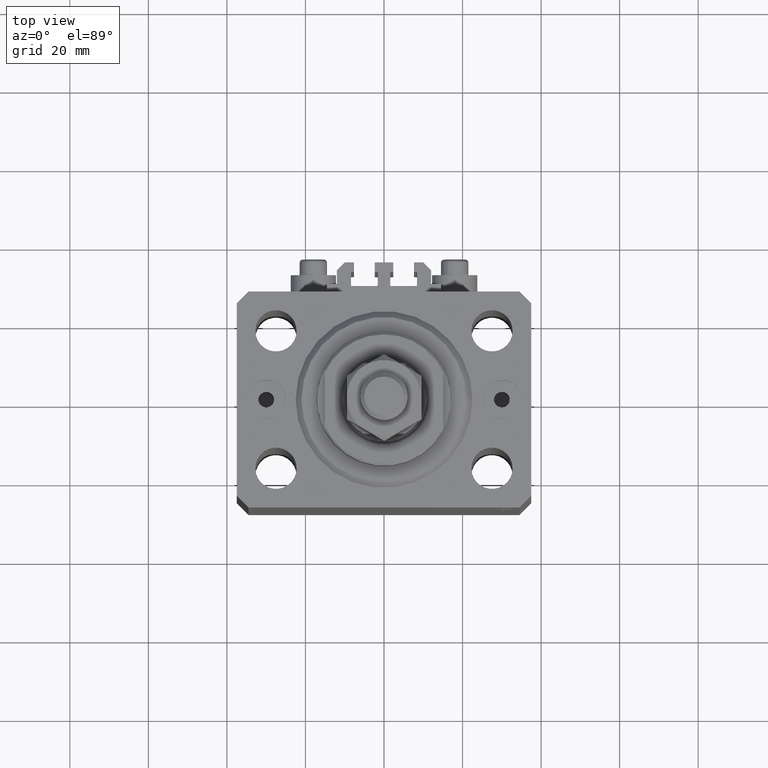
[diagram: clean part render]
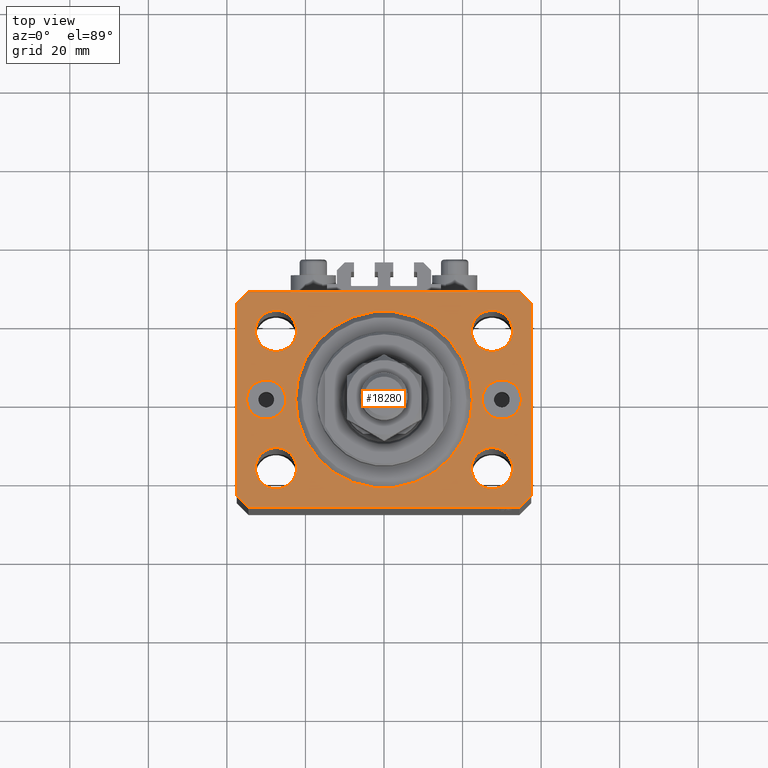
[diagram: same view with one face highlighted and labeled with its STEP entity id]
A machine part, top view. The second image highlights one B-rep face of the part: STEP entity #18280.
In plain terms, the highlighted planar face has unit normal (0, 0, 1).
Its self-contained STEP definition (entity closure, byte-faithful):
#778 = CARTESIAN_POINT ( 'NONE',  ( -22.24999999999999289, -17.50000000000000000, 0.000000000000000000 ) ) ;
#895 = VECTOR ( 'NONE', #40370, 1000.000000000000000 ) ;
#1052 = CARTESIAN_POINT ( 'NONE',  ( 34.49999999999999289, -27.49999999999999645, 0.000000000000000000 ) ) ;
#1520 = DIRECTION ( 'NONE',  ( 1.000000000000000000, 0.000000000000000000, 0.000000000000000000 ) ) ;
#1639 = DIRECTION ( 'NONE',  ( 0.000000000000000000, 0.000000000000000000, 1.000000000000000000 ) ) ;
#1670 = ORIENTED_EDGE ( 'NONE', *, *, #12439, .F. ) ;
#1732 = CARTESIAN_POINT ( 'NONE',  ( 0.000000000000000000, 0.000000000000000000, 0.000000000000000000 ) ) ;
#1741 = AXIS2_PLACEMENT_3D ( 'NONE', #8723, #38846, #20096 ) ;
#1816 = CIRCLE ( 'NONE', #46720, 5.000000000000000888 ) ;
#2251 = VERTEX_POINT ( 'NONE', #25223 ) ;
#2444 = CIRCLE ( 'NONE', #30872, 5.250000000000000888 ) ;
#2512 = CIRCLE ( 'NONE', #27772, 5.250000000000000888 ) ;
#2539 = VERTEX_POINT ( 'NONE', #9857 ) ;
#3327 = CARTESIAN_POINT ( 'NONE',  ( 37.50000000000051870, 24.49999999999995381, 0.000000000000000000 ) ) ;
#3331 = VECTOR ( 'NONE', #11478, 1000.000000000000000 ) ;
#3443 = CARTESIAN_POINT ( 'NONE',  ( -22.25000000000000000, 17.49999999999999645, 0.000000000000000000 ) ) ;
#3671 = ORIENTED_EDGE ( 'NONE', *, *, #40985, .F. ) ;
#3902 = AXIS2_PLACEMENT_3D ( 'NONE', #25041, #47955, #21586 ) ;
#3908 = ORIENTED_EDGE ( 'NONE', *, *, #24807, .T. ) ;
#4032 = AXIS2_PLACEMENT_3D ( 'NONE', #19315, #42474, #31167 ) ;
#4079 = FACE_BOUND ( 'NONE', #15097, .T. ) ;
#4104 = VERTEX_POINT ( 'NONE', #46711 ) ;
#4320 = FACE_BOUND ( 'NONE', #36274, .T. ) ;
#4454 = DIRECTION ( 'NONE',  ( 1.000000000000000000, 0.000000000000000000, 0.000000000000000000 ) ) ;
#4696 = EDGE_CURVE ( 'NONE', #24597, #4993, #19220, .T. ) ;
#4993 = VERTEX_POINT ( 'NONE', #40062 ) ;
#5028 = DIRECTION ( 'NONE',  ( 0.000000000000000000, 0.000000000000000000, 1.000000000000000000 ) ) ;
#5035 = EDGE_LOOP ( 'NONE', ( #12542, #44585 ) ) ;
#5429 = LINE ( 'NONE', #43431, #19146 ) ;
#6311 = CARTESIAN_POINT ( 'NONE',  ( 27.49999999999999289, -17.50000000000000000, 0.000000000000000000 ) ) ;
#6466 = EDGE_CURVE ( 'NONE', #32583, #2539, #17682, .T. ) ;
#6844 = AXIS2_PLACEMENT_3D ( 'NONE', #10041, #21648, #32516 ) ;
#6885 = ORIENTED_EDGE ( 'NONE', *, *, #14967, .T. ) ;
#6891 = DIRECTION ( 'NONE',  ( 0.000000000000000000, 0.000000000000000000, 1.000000000000000000 ) ) ;
#7611 = CIRCLE ( 'NONE', #35214, 4.999999999999997335 ) ;
#7774 = PLANE ( 'NONE',  #40252 ) ;
#8240 = CARTESIAN_POINT ( 'NONE',  ( -27.50000000000000000, 17.49999999999999645, 0.000000000000000000 ) ) ;
#8723 = CARTESIAN_POINT ( 'NONE',  ( 0.000000000000000000, 0.000000000000000000, 0.000000000000000000 ) ) ;
#9857 = CARTESIAN_POINT ( 'NONE',  ( -32.74999999999999289, -17.50000000000000000, 0.000000000000000000 ) ) ;
#10023 = VECTOR ( 'NONE', #12655, 1000.000000000000114 ) ;
#10041 = CARTESIAN_POINT ( 'NONE',  ( 27.50000000000000000, 17.49999999999999289, 0.000000000000000000 ) ) ;
#10437 = ORIENTED_EDGE ( 'NONE', *, *, #26598, .T. ) ;
#10459 = EDGE_CURVE ( 'NONE', #37566, #31435, #20229, .T. ) ;
#10592 = ORIENTED_EDGE ( 'NONE', *, *, #6466, .F. ) ;
#10852 = EDGE_CURVE ( 'NONE', #45545, #24561, #22528, .T. ) ;
#11019 = CIRCLE ( 'NONE', #3902, 5.000000000000000888 ) ;
#11298 = CARTESIAN_POINT ( 'NONE',  ( -37.49999999999999289, 24.50000000000000000, 0.000000000000000000 ) ) ;
#11478 = DIRECTION ( 'NONE',  ( -0.7071067811865471286, -0.7071067811865479058, 0.000000000000000000 ) ) ;
#11624 = CARTESIAN_POINT ( 'NONE',  ( 30.00000000000000000, 0.000000000000000000, 0.000000000000000000 ) ) ;
#12016 = EDGE_LOOP ( 'NONE', ( #10437, #20072, #43196, #18761, #6885, #13881, #39429, #3908 ) ) ;
#12309 = CARTESIAN_POINT ( 'NONE',  ( -24.99999999999999645, 0.000000000000000000, 0.000000000000000000 ) ) ;
#12366 = DIRECTION ( 'NONE',  ( 0.000000000000000000, 0.000000000000000000, 1.000000000000000000 ) ) ;
#12439 = EDGE_CURVE ( 'NONE', #44273, #15649, #20244, .T. ) ;
#12542 = ORIENTED_EDGE ( 'NONE', *, *, #35839, .F. ) ;
#12655 = DIRECTION ( 'NONE',  ( 0.7071067811865474617, 0.7071067811865474617, 0.000000000000000000 ) ) ;
#12996 = EDGE_CURVE ( 'NONE', #21841, #14951, #7611, .T. ) ;
#13342 = ORIENTED_EDGE ( 'NONE', *, *, #30139, .F. ) ;
#13687 = EDGE_CURVE ( 'NONE', #2251, #37566, #46439, .T. ) ;
#13881 = ORIENTED_EDGE ( 'NONE', *, *, #13687, .T. ) ;
#14217 = CARTESIAN_POINT ( 'NONE',  ( -34.49999999999998579, -27.49999999999999645, 0.000000000000000000 ) ) ;
#14800 = CARTESIAN_POINT ( 'NONE',  ( 27.50000000000000000, 17.49999999999999289, 0.000000000000000000 ) ) ;
#14951 = VERTEX_POINT ( 'NONE', #20900 ) ;
#14967 = EDGE_CURVE ( 'NONE', #40461, #2251, #29049, .T. ) ;
#15044 = ORIENTED_EDGE ( 'NONE', *, *, #12996, .T. ) ;
#15097 = EDGE_LOOP ( 'NONE', ( #1670, #40118 ) ) ;
#15102 = CARTESIAN_POINT ( 'NONE',  ( -32.75000000000000000, 17.49999999999999645, 0.000000000000000000 ) ) ;
#15208 = FACE_BOUND ( 'NONE', #34567, .T. ) ;
#15649 = VERTEX_POINT ( 'NONE', #27283 ) ;
#16636 = VERTEX_POINT ( 'NONE', #39662 ) ;
#16834 = CIRCLE ( 'NONE', #35747, 22.50000000000000355 ) ;
#17045 = EDGE_LOOP ( 'NONE', ( #47676, #13342 ) ) ;
#17437 = DIRECTION ( 'NONE',  ( 1.000000000000000000, 0.000000000000000000, 0.000000000000000000 ) ) ;
#17682 = CIRCLE ( 'NONE', #29493, 5.250000000000000888 ) ;
#18276 = CIRCLE ( 'NONE', #1741, 22.50000000000000355 ) ;
#18280 = ADVANCED_FACE ( 'NONE', ( #23324, #23081, #4079, #37646, #15208, #4320, #19390, #41350 ), #7774, .T. ) ;
#18361 = CARTESIAN_POINT ( 'NONE',  ( 30.00000000000000000, 0.000000000000000000, 0.000000000000000000 ) ) ;
#18449 = ORIENTED_EDGE ( 'NONE', *, *, #44819, .F. ) ;
#18757 = CARTESIAN_POINT ( 'NONE',  ( 37.49999999999999289, -24.50000000000000000, 0.000000000000000000 ) ) ;
#18761 = ORIENTED_EDGE ( 'NONE', *, *, #42996, .T. ) ;
#18805 = DIRECTION ( 'NONE',  ( 0.7071067811865483499, -0.7071067811865466846, 0.000000000000000000 ) ) ;
#19146 = VECTOR ( 'NONE', #31869, 1000.000000000000114 ) ;
#19220 = CIRCLE ( 'NONE', #45957, 5.250000000000000888 ) ;
#19315 = CARTESIAN_POINT ( 'NONE',  ( 27.49999999999999289, -17.50000000000000000, 0.000000000000000000 ) ) ;
#19390 = FACE_BOUND ( 'NONE', #17045, .T. ) ;
#19873 = AXIS2_PLACEMENT_3D ( 'NONE', #11624, #33840, #4454 ) ;
#20072 = ORIENTED_EDGE ( 'NONE', *, *, #40902, .T. ) ;
#20096 = DIRECTION ( 'NONE',  ( 1.000000000000000000, 0.000000000000000000, 0.000000000000000000 ) ) ;
#20098 = DIRECTION ( 'NONE',  ( 1.000000000000000000, 0.000000000000000000, 0.000000000000000000 ) ) ;
#20229 = LINE ( 'NONE', #35275, #33551 ) ;
#20244 = CIRCLE ( 'NONE', #6844, 5.250000000000000888 ) ;
#20326 = EDGE_LOOP ( 'NONE', ( #15044, #30903 ) ) ;
#20663 = DIRECTION ( 'NONE',  ( 0.000000000000000000, 0.000000000000000000, 1.000000000000000000 ) ) ;
#20735 = EDGE_CURVE ( 'NONE', #16636, #4104, #18276, .T. ) ;
#20900 = CARTESIAN_POINT ( 'NONE',  ( 25.00000000000000000, 6.123233995736762338E-16, 0.000000000000000000 ) ) ;
#21137 = CARTESIAN_POINT ( 'NONE',  ( -34.49999999999999289, 27.50000000000000000, 0.000000000000000000 ) ) ;
#21142 = CARTESIAN_POINT ( 'NONE',  ( -27.49999999999999289, -17.50000000000000000, 0.000000000000000000 ) ) ;
#21227 = DIRECTION ( 'NONE',  ( 0.000000000000000000, 0.000000000000000000, 1.000000000000000000 ) ) ;
#21586 = DIRECTION ( 'NONE',  ( 1.000000000000000000, 0.000000000000000000, 0.000000000000000000 ) ) ;
#21648 = DIRECTION ( 'NONE',  ( 0.000000000000000000, 0.000000000000000000, 1.000000000000000000 ) ) ;
#21782 = CARTESIAN_POINT ( 'NONE',  ( 22.24999999999999289, -17.50000000000000000, 0.000000000000000000 ) ) ;
#21841 = VERTEX_POINT ( 'NONE', #29722 ) ;
#22528 = CIRCLE ( 'NONE', #41431, 5.250000000000000888 ) ;
#23006 = DIRECTION ( 'NONE',  ( 0.000000000000000000, 0.000000000000000000, 1.000000000000000000 ) ) ;
#23081 = FACE_BOUND ( 'NONE', #29987, .T. ) ;
#23324 = FACE_OUTER_BOUND ( 'NONE', #12016, .T. ) ;
#23568 = DIRECTION ( 'NONE',  ( 1.000000000000000000, 0.000000000000000000, -0.000000000000000000 ) ) ;
#23976 = EDGE_CURVE ( 'NONE', #15649, #44273, #33180, .T. ) ;
#24026 = CARTESIAN_POINT ( 'NONE',  ( 34.50000000000056843, 27.50000000000000000, 0.000000000000000000 ) ) ;
#24311 = VERTEX_POINT ( 'NONE', #24026 ) ;
#24456 = CARTESIAN_POINT ( 'NONE',  ( -34.49999999999998579, -27.49999999999999645, 0.000000000000000000 ) ) ;
#24561 = VERTEX_POINT ( 'NONE', #15102 ) ;
#24597 = VERTEX_POINT ( 'NONE', #21782 ) ;
#24807 = EDGE_CURVE ( 'NONE', #31435, #24311, #5429, .T. ) ;
#24836 = LINE ( 'NONE', #21137, #3331 ) ;
#25041 = CARTESIAN_POINT ( 'NONE',  ( -30.00000000000000000, 0.000000000000000000, 0.000000000000000000 ) ) ;
#25223 = CARTESIAN_POINT ( 'NONE',  ( 34.49999999999999289, -27.49999999999999645, 0.000000000000000000 ) ) ;
#25339 = CIRCLE ( 'NONE', #4032, 5.250000000000000888 ) ;
#26598 = EDGE_CURVE ( 'NONE', #24311, #46079, #34146, .T. ) ;
#26658 = CARTESIAN_POINT ( 'NONE',  ( 32.75000000000000000, 17.49999999999999289, 0.000000000000000000 ) ) ;
#27283 = CARTESIAN_POINT ( 'NONE',  ( 22.25000000000000000, 17.49999999999999289, 0.000000000000000000 ) ) ;
#27405 = CARTESIAN_POINT ( 'NONE',  ( -37.49999999999999289, -24.50000000000000000, 0.000000000000000000 ) ) ;
#27438 = DIRECTION ( 'NONE',  ( 1.000000000000000000, 0.000000000000000000, 0.000000000000000000 ) ) ;
#27615 = ORIENTED_EDGE ( 'NONE', *, *, #10852, .F. ) ;
#27772 = AXIS2_PLACEMENT_3D ( 'NONE', #8240, #5028, #20098 ) ;
#27917 = CARTESIAN_POINT ( 'NONE',  ( -34.99999999999999289, 6.123233995736768255E-16, 0.000000000000000000 ) ) ;
#27944 = VERTEX_POINT ( 'NONE', #12309 ) ;
#28809 = LINE ( 'NONE', #32977, #895 ) ;
#28817 = DIRECTION ( 'NONE',  ( 1.000000000000000000, 0.000000000000000000, 0.000000000000000000 ) ) ;
#29049 = LINE ( 'NONE', #14217, #47172 ) ;
#29493 = AXIS2_PLACEMENT_3D ( 'NONE', #31164, #23006, #1520 ) ;
#29722 = CARTESIAN_POINT ( 'NONE',  ( 34.99999999999999289, 0.000000000000000000, 0.000000000000000000 ) ) ;
#29731 = DIRECTION ( 'NONE',  ( 1.000000000000000000, 0.000000000000000000, 0.000000000000000000 ) ) ;
#29987 = EDGE_LOOP ( 'NONE', ( #27615, #3671 ) ) ;
#30139 = EDGE_CURVE ( 'NONE', #44825, #27944, #11019, .T. ) ;
#30208 = VECTOR ( 'NONE', #18805, 1000.000000000000000 ) ;
#30696 = DIRECTION ( 'NONE',  ( -1.000000000000000000, 0.000000000000000000, 0.000000000000000000 ) ) ;
#30872 = AXIS2_PLACEMENT_3D ( 'NONE', #21142, #36187, #33218 ) ;
#30903 = ORIENTED_EDGE ( 'NONE', *, *, #36501, .T. ) ;
#31164 = CARTESIAN_POINT ( 'NONE',  ( -27.49999999999999289, -17.50000000000000000, 0.000000000000000000 ) ) ;
#31167 = DIRECTION ( 'NONE',  ( 1.000000000000000000, 0.000000000000000000, 0.000000000000000000 ) ) ;
#31435 = VERTEX_POINT ( 'NONE', #3327 ) ;
#31671 = ORIENTED_EDGE ( 'NONE', *, *, #20735, .F. ) ;
#31860 = DIRECTION ( 'NONE',  ( 1.000000000000000000, 0.000000000000000000, 0.000000000000000000 ) ) ;
#31869 = DIRECTION ( 'NONE',  ( -0.7071067811865364705, 0.7071067811865584529, 0.000000000000000000 ) ) ;
#32243 = CARTESIAN_POINT ( 'NONE',  ( -34.49999999999999289, 27.50000000000000000, 0.000000000000000000 ) ) ;
#32516 = DIRECTION ( 'NONE',  ( 1.000000000000000000, 0.000000000000000000, 0.000000000000000000 ) ) ;
#32583 = VERTEX_POINT ( 'NONE', #778 ) ;
#32977 = CARTESIAN_POINT ( 'NONE',  ( -37.49999999999999289, 24.50000000000000000, 0.000000000000000000 ) ) ;
#33180 = CIRCLE ( 'NONE', #42634, 5.250000000000000888 ) ;
#33218 = DIRECTION ( 'NONE',  ( 1.000000000000000000, 0.000000000000000000, 0.000000000000000000 ) ) ;
#33551 = VECTOR ( 'NONE', #38241, 1000.000000000000000 ) ;
#33840 = DIRECTION ( 'NONE',  ( 0.000000000000000000, -0.000000000000000000, -1.000000000000000000 ) ) ;
#34100 = LINE ( 'NONE', #45666, #30208 ) ;
#34146 = LINE ( 'NONE', #45237, #47151 ) ;
#34439 = CARTESIAN_POINT ( 'NONE',  ( 0.000000000000000000, 0.000000000000000000, 0.000000000000000000 ) ) ;
#34567 = EDGE_LOOP ( 'NONE', ( #10592, #38856 ) ) ;
#35214 = AXIS2_PLACEMENT_3D ( 'NONE', #18361, #48448, #29731 ) ;
#35275 = CARTESIAN_POINT ( 'NONE',  ( 37.49999999999999289, -24.50000000000000000, 0.000000000000000000 ) ) ;
#35472 = VERTEX_POINT ( 'NONE', #11298 ) ;
#35747 = AXIS2_PLACEMENT_3D ( 'NONE', #1732, #21227, #31860 ) ;
#35839 = EDGE_CURVE ( 'NONE', #4993, #24597, #25339, .T. ) ;
#36046 = VERTEX_POINT ( 'NONE', #27405 ) ;
#36187 = DIRECTION ( 'NONE',  ( 0.000000000000000000, 0.000000000000000000, 1.000000000000000000 ) ) ;
#36274 = EDGE_LOOP ( 'NONE', ( #18449, #31671 ) ) ;
#36501 = EDGE_CURVE ( 'NONE', #14951, #21841, #42710, .T. ) ;
#37566 = VERTEX_POINT ( 'NONE', #18757 ) ;
#37646 = FACE_BOUND ( 'NONE', #5035, .T. ) ;
#38241 = DIRECTION ( 'NONE',  ( 1.076236605503979380E-14, 1.000000000000000000, 0.000000000000000000 ) ) ;
#38816 = EDGE_CURVE ( 'NONE', #2539, #32583, #2444, .T. ) ;
#38846 = DIRECTION ( 'NONE',  ( 0.000000000000000000, 0.000000000000000000, 1.000000000000000000 ) ) ;
#38856 = ORIENTED_EDGE ( 'NONE', *, *, #38816, .F. ) ;
#38887 = EDGE_CURVE ( 'NONE', #35472, #36046, #28809, .T. ) ;
#39261 = CARTESIAN_POINT ( 'NONE',  ( -30.00000000000000000, 0.000000000000000000, 0.000000000000000000 ) ) ;
#39408 = CARTESIAN_POINT ( 'NONE',  ( -27.50000000000000000, 17.49999999999999645, 0.000000000000000000 ) ) ;
#39429 = ORIENTED_EDGE ( 'NONE', *, *, #10459, .T. ) ;
#39662 = CARTESIAN_POINT ( 'NONE',  ( -22.50000000000000355, 2.755455298081545172E-15, 0.000000000000000000 ) ) ;
#40062 = CARTESIAN_POINT ( 'NONE',  ( 32.74999999999999289, -17.50000000000000000, 0.000000000000000000 ) ) ;
#40118 = ORIENTED_EDGE ( 'NONE', *, *, #23976, .F. ) ;
#40252 = AXIS2_PLACEMENT_3D ( 'NONE', #34439, #45046, #23568 ) ;
#40370 = DIRECTION ( 'NONE',  ( 0.000000000000000000, -1.000000000000000000, 0.000000000000000000 ) ) ;
#40461 = VERTEX_POINT ( 'NONE', #24456 ) ;
#40613 = DIRECTION ( 'NONE',  ( 1.000000000000000000, 0.000000000000000000, 0.000000000000000000 ) ) ;
#40902 = EDGE_CURVE ( 'NONE', #46079, #35472, #24836, .T. ) ;
#40985 = EDGE_CURVE ( 'NONE', #24561, #45545, #2512, .T. ) ;
#41350 = FACE_BOUND ( 'NONE', #20326, .T. ) ;
#41431 = AXIS2_PLACEMENT_3D ( 'NONE', #39408, #20663, #28817 ) ;
#42474 = DIRECTION ( 'NONE',  ( 0.000000000000000000, 0.000000000000000000, 1.000000000000000000 ) ) ;
#42634 = AXIS2_PLACEMENT_3D ( 'NONE', #14800, #6891, #48088 ) ;
#42710 = CIRCLE ( 'NONE', #19873, 4.999999999999997335 ) ;
#42996 = EDGE_CURVE ( 'NONE', #36046, #40461, #34100, .T. ) ;
#43167 = EDGE_CURVE ( 'NONE', #27944, #44825, #1816, .T. ) ;
#43196 = ORIENTED_EDGE ( 'NONE', *, *, #38887, .T. ) ;
#43431 = CARTESIAN_POINT ( 'NONE',  ( 37.50000000000051870, 24.49999999999995381, 0.000000000000000000 ) ) ;
#44273 = VERTEX_POINT ( 'NONE', #26658 ) ;
#44585 = ORIENTED_EDGE ( 'NONE', *, *, #4696, .F. ) ;
#44819 = EDGE_CURVE ( 'NONE', #4104, #16636, #16834, .T. ) ;
#44825 = VERTEX_POINT ( 'NONE', #27917 ) ;
#45046 = DIRECTION ( 'NONE',  ( 0.000000000000000000, 0.000000000000000000, 1.000000000000000000 ) ) ;
#45237 = CARTESIAN_POINT ( 'NONE',  ( 34.50000000000056843, 27.50000000000000000, 0.000000000000000000 ) ) ;
#45545 = VERTEX_POINT ( 'NONE', #3443 ) ;
#45666 = CARTESIAN_POINT ( 'NONE',  ( -37.49999999999999289, -24.50000000000000000, 0.000000000000000000 ) ) ;
#45957 = AXIS2_PLACEMENT_3D ( 'NONE', #6311, #1639, #17437 ) ;
#46079 = VERTEX_POINT ( 'NONE', #32243 ) ;
#46439 = LINE ( 'NONE', #1052, #10023 ) ;
#46711 = CARTESIAN_POINT ( 'NONE',  ( 22.50000000000000355, 0.000000000000000000, 0.000000000000000000 ) ) ;
#46720 = AXIS2_PLACEMENT_3D ( 'NONE', #39261, #12366, #27438 ) ;
#47151 = VECTOR ( 'NONE', #30696, 1000.000000000000000 ) ;
#47172 = VECTOR ( 'NONE', #40613, 1000.000000000000000 ) ;
#47676 = ORIENTED_EDGE ( 'NONE', *, *, #43167, .F. ) ;
#47955 = DIRECTION ( 'NONE',  ( 0.000000000000000000, 0.000000000000000000, 1.000000000000000000 ) ) ;
#48088 = DIRECTION ( 'NONE',  ( 1.000000000000000000, 0.000000000000000000, 0.000000000000000000 ) ) ;
#48448 = DIRECTION ( 'NONE',  ( 0.000000000000000000, -0.000000000000000000, -1.000000000000000000 ) ) ;